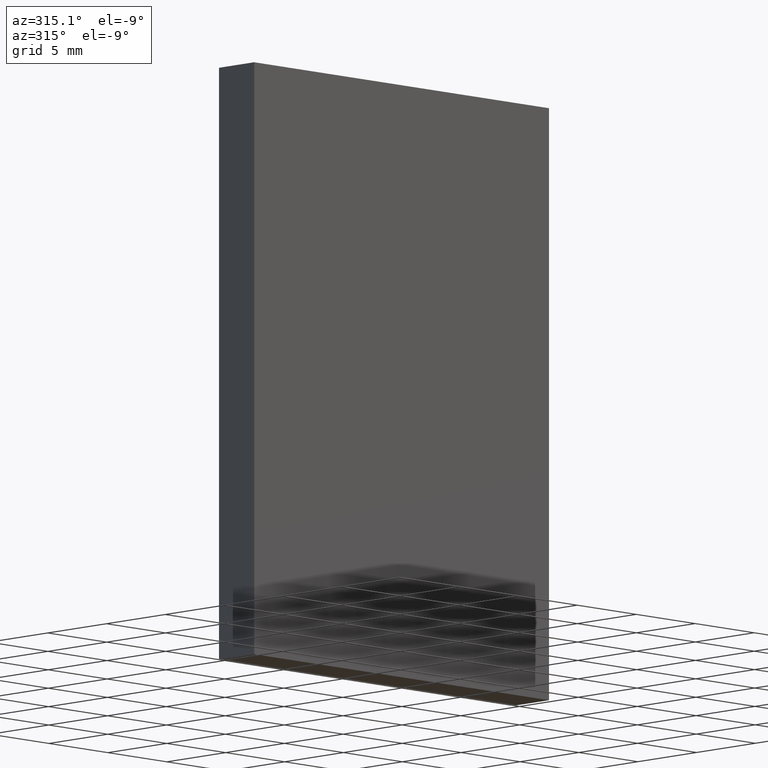
[diagram: clean part render]
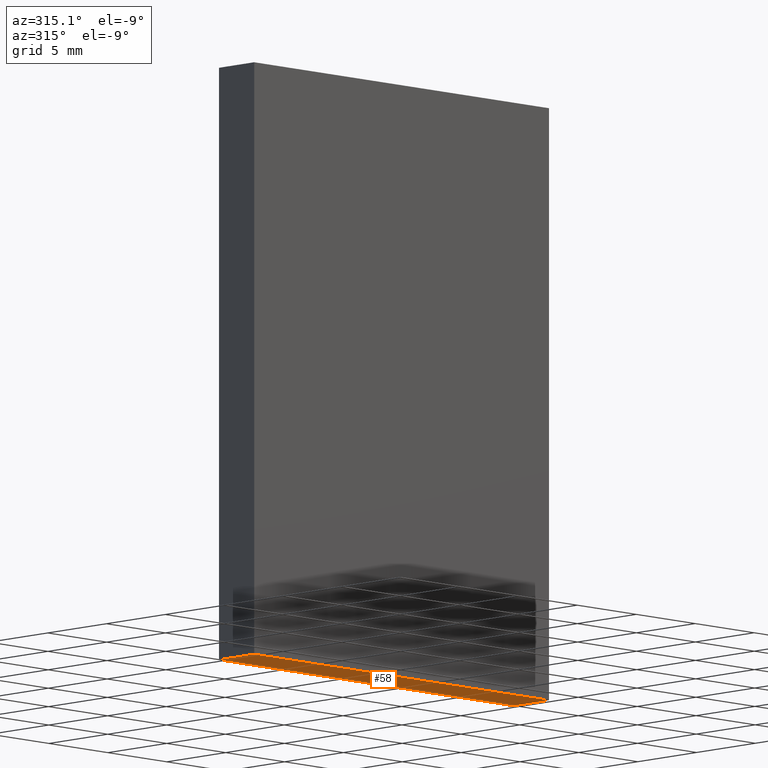
[diagram: same view with one face highlighted and labeled with its STEP entity id]
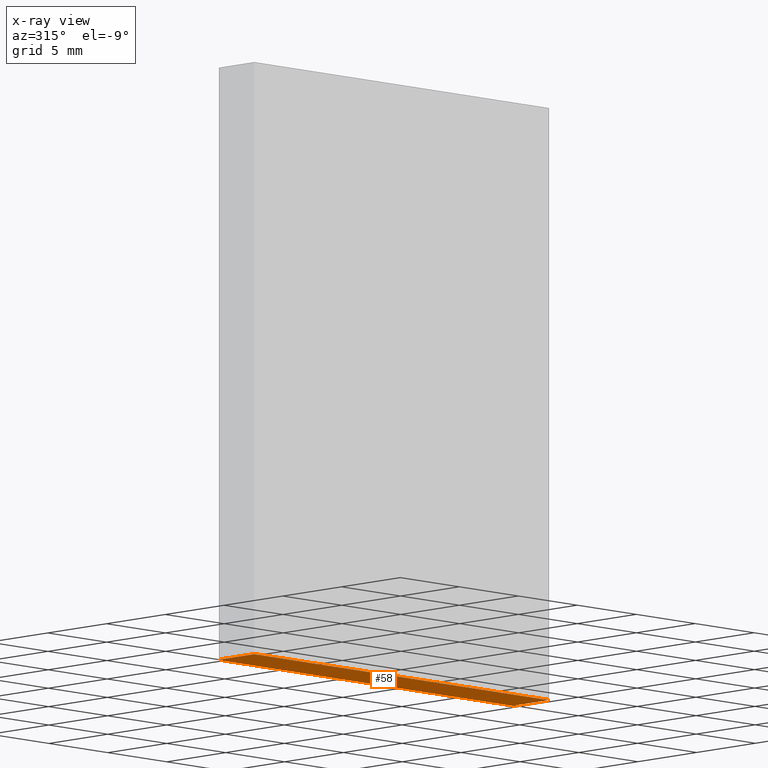
[diagram: x-ray of the same camera — body ghosted, the highlighted face saturated]
A machine part, auxiliary view. The second image highlights one B-rep face of the part: STEP entity #58.
The next image is the same camera in x-ray: the body ghosted, the highlighted face saturated — about 0% of this face is hidden behind the body in this view.
In plain terms, the highlighted planar face has unit normal (0, 0, 1).
Its self-contained STEP definition (entity closure, byte-faithful):
#1 = DIRECTION ( 'NONE',  ( -0.0000000000000000000, -1.000000000000000000, -0.0000000000000000000 ) ) ;
#2 = ORIENTED_EDGE ( 'NONE', *, *, #92, .F. ) ;
#14 = DIRECTION ( 'NONE',  ( -1.000000000000000000, -0.0000000000000000000, -0.0000000000000000000 ) ) ;
#16 = VECTOR ( 'NONE', #14, 1000.000000000000000 ) ;
#17 = LINE ( 'NONE', #122, #127 ) ;
#29 = FACE_OUTER_BOUND ( 'NONE', #61, .T. ) ;
#30 = DIRECTION ( 'NONE',  ( 1.000000000000000000, 0.0000000000000000000, -0.0000000000000000000 ) ) ;
#37 = VECTOR ( 'NONE', #69, 1000.000000000000000 ) ;
#43 = CARTESIAN_POINT ( 'NONE',  ( -12.50000000000000500, 3.000000000000000000, -17.99999999999999600 ) ) ;
#58 = ADVANCED_FACE ( 'NONE', ( #29 ), #84, .F. ) ;
#61 = EDGE_LOOP ( 'NONE', ( #193, #143, #2, #105 ) ) ;
#69 = DIRECTION ( 'NONE',  ( -0.0000000000000000000, -1.000000000000000000, -0.0000000000000000000 ) ) ;
#70 = EDGE_CURVE ( 'NONE', #83, #142, #200, .T. ) ;
#73 = DIRECTION ( 'NONE',  ( -1.000000000000000000, -0.0000000000000000000, -0.0000000000000000000 ) ) ;
#74 = DIRECTION ( 'NONE',  ( 0.0000000000000000000, 0.0000000000000000000, 1.000000000000000000 ) ) ;
#83 = VERTEX_POINT ( 'NONE', #130 ) ;
#84 = PLANE ( 'NONE',  #121 ) ;
#88 = EDGE_CURVE ( 'NONE', #189, #83, #17, .T. ) ;
#90 = LINE ( 'NONE', #186, #37 ) ;
#91 = VERTEX_POINT ( 'NONE', #96 ) ;
#92 = EDGE_CURVE ( 'NONE', #189, #91, #114, .T. ) ;
#96 = CARTESIAN_POINT ( 'NONE',  ( -12.50000000000000500, 3.000000000000000000, -17.99999999999999600 ) ) ;
#103 = CARTESIAN_POINT ( 'NONE',  ( 12.49999999999999500, 3.000000000000000000, -17.99999999999999600 ) ) ;
#105 = ORIENTED_EDGE ( 'NONE', *, *, #88, .T. ) ;
#114 = LINE ( 'NONE', #152, #16 ) ;
#121 = AXIS2_PLACEMENT_3D ( 'NONE', #43, #74, #30 ) ;
#122 = CARTESIAN_POINT ( 'NONE',  ( 12.49999999999999500, 3.000000000000000000, -17.99999999999999600 ) ) ;
#125 = CARTESIAN_POINT ( 'NONE',  ( -12.50000000000000500, 0.0000000000000000000, -17.99999999999999600 ) ) ;
#127 = VECTOR ( 'NONE', #1, 1000.000000000000000 ) ;
#130 = CARTESIAN_POINT ( 'NONE',  ( 12.49999999999999500, 0.0000000000000000000, -17.99999999999999600 ) ) ;
#134 = EDGE_CURVE ( 'NONE', #91, #142, #90, .T. ) ;
#142 = VERTEX_POINT ( 'NONE', #125 ) ;
#143 = ORIENTED_EDGE ( 'NONE', *, *, #134, .F. ) ;
#152 = CARTESIAN_POINT ( 'NONE',  ( -12.50000000000000500, 3.000000000000000000, -17.99999999999999600 ) ) ;
#166 = VECTOR ( 'NONE', #73, 1000.000000000000000 ) ;
#186 = CARTESIAN_POINT ( 'NONE',  ( -12.50000000000000500, 3.000000000000000000, -17.99999999999999600 ) ) ;
#189 = VERTEX_POINT ( 'NONE', #103 ) ;
#190 = CARTESIAN_POINT ( 'NONE',  ( -12.50000000000000500, 0.0000000000000000000, -17.99999999999999600 ) ) ;
#193 = ORIENTED_EDGE ( 'NONE', *, *, #70, .T. ) ;
#200 = LINE ( 'NONE', #190, #166 ) ;